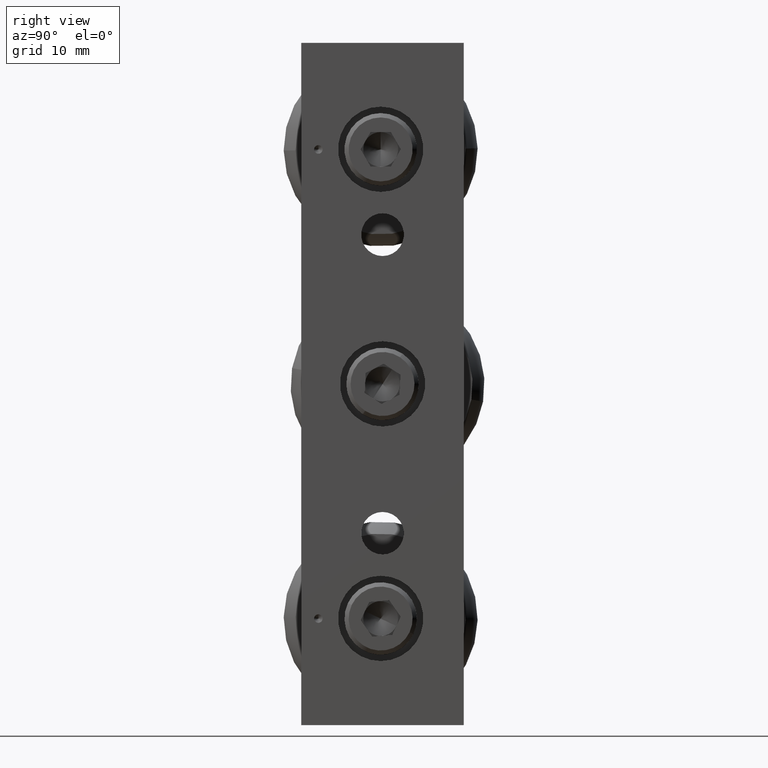
[diagram: clean part render]
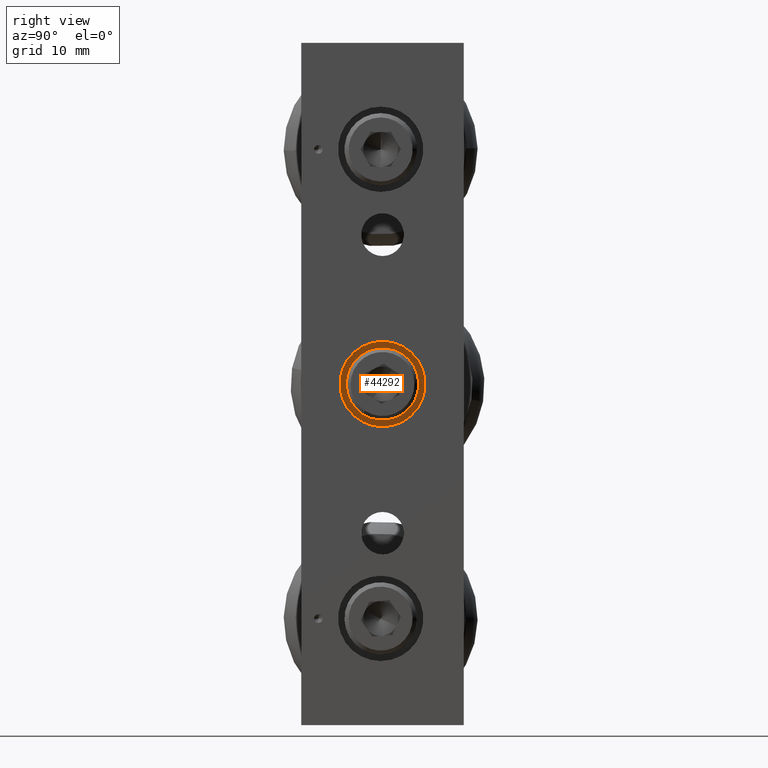
[diagram: same view with one face highlighted and labeled with its STEP entity id]
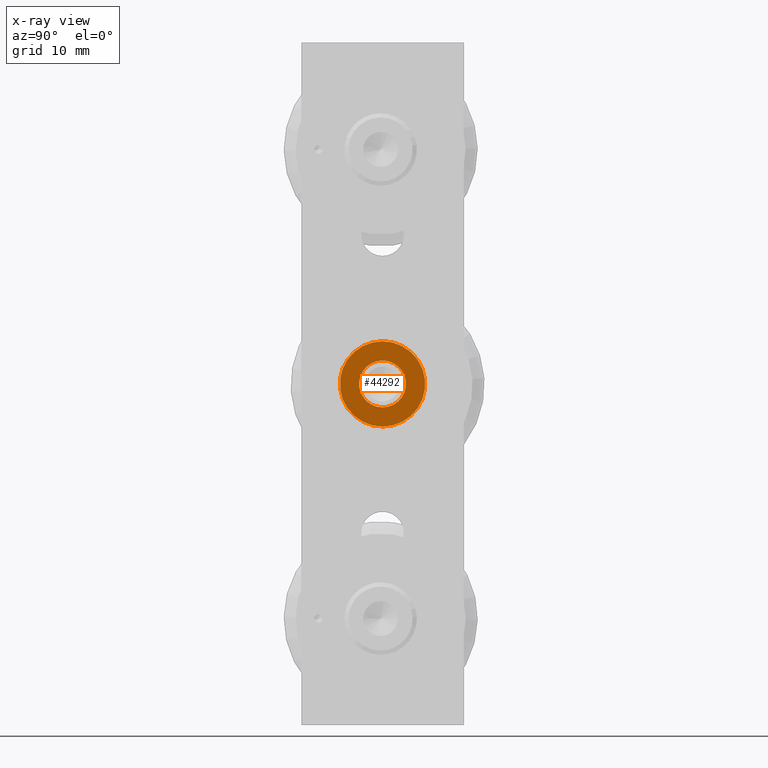
[diagram: x-ray of the same camera — body ghosted, the highlighted face saturated]
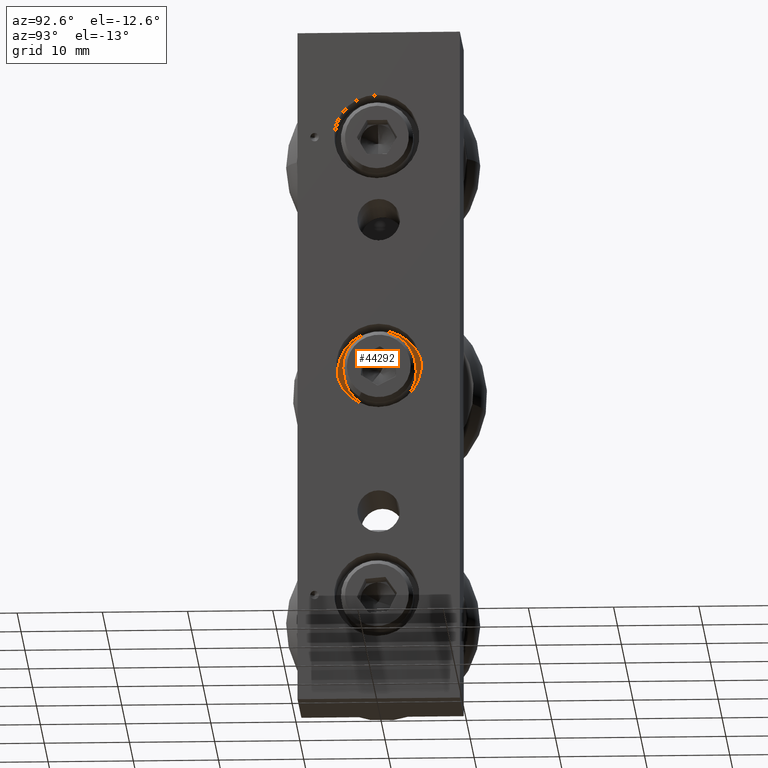
[diagram: same view with one face highlighted and labeled with its STEP entity id]
A machine part, right view. The second image highlights one B-rep face of the part: STEP entity #44292.
The next image is the same camera in x-ray: the body ghosted, the highlighted face saturated — about 0% of this face is hidden behind the body in this view.
A second angle (auxiliary view) of the same face is appended — the face is thin or edge-on in the first view.
In plain terms, the highlighted planar face has unit normal (-1, 0, -0).
Its self-contained STEP definition (entity closure, byte-faithful):
#38 = DIRECTION ( 'NONE',  ( 0.000000000000000000, 2.775557561562895049E-17, 1.000000000000000000 ) ) ;
#969 = DIRECTION ( 'NONE',  ( 0.000000000000000000, 2.775557561562863310E-17, 1.000000000000000000 ) ) ;
#2000 = AXIS2_PLACEMENT_3D ( 'NONE', #20313, #14907, #14595 ) ;
#4811 = AXIS2_PLACEMENT_3D ( 'NONE', #39340, #10517, #969 ) ;
#6021 = CARTESIAN_POINT ( 'NONE',  ( 0.8956692910644267203, -0.1082677165354326010, -2.362204724409448620 ) ) ;
#6621 = AXIS2_PLACEMENT_3D ( 'NONE', #48731, #24316, #38 ) ;
#8623 = PLANE ( 'NONE',  #46552 ) ;
#8869 = ORIENTED_EDGE ( 'NONE', *, *, #34065, .F. ) ;
#9538 = CARTESIAN_POINT ( 'NONE',  ( 0.8956692910644267203, 4.810784316842767104E-16, -2.253937007874015741 ) ) ;
#10517 = DIRECTION ( 'NONE',  ( 1.000000000000000000, 4.122974739858164500E-35, 5.538395266801810043E-17 ) ) ;
#14595 = DIRECTION ( 'NONE',  ( 0.000000000000000000, 2.775557561562895049E-17, 1.000000000000000000 ) ) ;
#14907 = DIRECTION ( 'NONE',  ( 1.000000000000000000, 4.122974739858164500E-35, 5.538395266801810043E-17 ) ) ;
#17251 = EDGE_CURVE ( 'NONE', #42996, #17947, #29515, .T. ) ;
#17947 = VERTEX_POINT ( 'NONE', #36555 ) ;
#17968 = ORIENTED_EDGE ( 'NONE', *, *, #17251, .T. ) ;
#19768 = DIRECTION ( 'NONE',  ( 0.000000000000000000, -2.775557561562891351E-17, -1.000000000000000000 ) ) ;
#20313 = CARTESIAN_POINT ( 'NONE',  ( 0.8956692910644267203, 4.780733988912460139E-16, -2.362204724409448620 ) ) ;
#22508 = VERTEX_POINT ( 'NONE', #9538 ) ;
#24316 = DIRECTION ( 'NONE',  ( 1.000000000000000000, 4.122974739858164500E-35, 5.538395266801810043E-17 ) ) ;
#25278 = DIRECTION ( 'NONE',  ( 1.000000000000000000, 4.122974739858164500E-35, 5.538395266801810043E-17 ) ) ;
#25996 = CIRCLE ( 'NONE', #6621, 0.1968503937007873017 ) ;
#27436 = ORIENTED_EDGE ( 'NONE', *, *, #56710, .T. ) ;
#28575 = VERTEX_POINT ( 'NONE', #30965 ) ;
#29515 = CIRCLE ( 'NONE', #2000, 0.1968503937007873017 ) ;
#30965 = CARTESIAN_POINT ( 'NONE',  ( 0.8956692910644267203, 4.618093948476042162E-16, -2.470472440944881942 ) ) ;
#32915 = FACE_OUTER_BOUND ( 'NONE', #54864, .T. ) ;
#34065 = EDGE_CURVE ( 'NONE', #28575, #22508, #56995, .T. ) ;
#36555 = CARTESIAN_POINT ( 'NONE',  ( 0.8956692910644267203, 4.835370948785745798E-16, -2.165354330708661568 ) ) ;
#37747 = FACE_BOUND ( 'NONE', #43085, .T. ) ;
#39156 = CARTESIAN_POINT ( 'NONE',  ( 0.8956692910644267203, 4.485024824482609182E-16, -2.559055118110236560 ) ) ;
#39340 = CARTESIAN_POINT ( 'NONE',  ( 0.8956692910644267203, 4.780733988912460139E-16, -2.362204724409448620 ) ) ;
#39389 = CARTESIAN_POINT ( 'NONE',  ( 0.8956692910644267203, 4.780733988912460139E-16, -2.362204724409448620 ) ) ;
#42996 = VERTEX_POINT ( 'NONE', #39156 ) ;
#43085 = EDGE_LOOP ( 'NONE', ( #58880, #8869 ) ) ;
#43333 = EDGE_CURVE ( 'NONE', #22508, #28575, #58767, .T. ) ;
#44127 = DIRECTION ( 'NONE',  ( -1.000000000000000000, 1.495983738771007353E-33, -4.152188978120994615E-50 ) ) ;
#44292 = ADVANCED_FACE ( 'NONE', ( #37747, #32915 ), #8623, .F. ) ;
#46552 = AXIS2_PLACEMENT_3D ( 'NONE', #6021, #44127, #19768 ) ;
#47582 = AXIS2_PLACEMENT_3D ( 'NONE', #39389, #25278, #58963 ) ;
#48731 = CARTESIAN_POINT ( 'NONE',  ( 0.8956692910644267203, 4.780733988912460139E-16, -2.362204724409448620 ) ) ;
#54864 = EDGE_LOOP ( 'NONE', ( #27436, #17968 ) ) ;
#56710 = EDGE_CURVE ( 'NONE', #17947, #42996, #25996, .T. ) ;
#56995 = CIRCLE ( 'NONE', #4811, 0.1082677165354331700 ) ;
#58767 = CIRCLE ( 'NONE', #47582, 0.1082677165354331700 ) ;
#58880 = ORIENTED_EDGE ( 'NONE', *, *, #43333, .F. ) ;
#58963 = DIRECTION ( 'NONE',  ( 0.000000000000000000, 2.775557561562863310E-17, 1.000000000000000000 ) ) ;